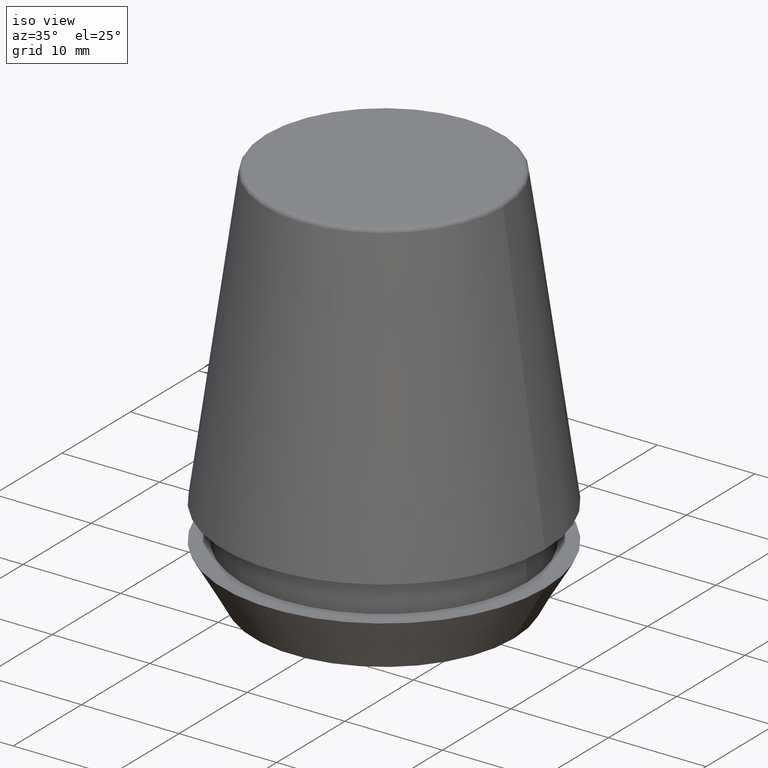
[diagram: clean part render]
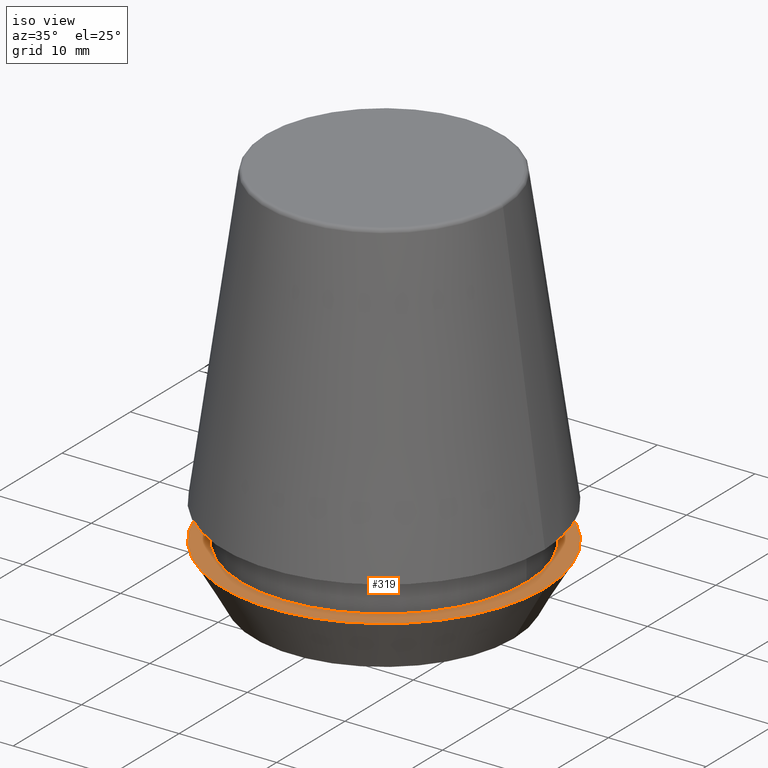
[diagram: same view with one face highlighted and labeled with its STEP entity id]
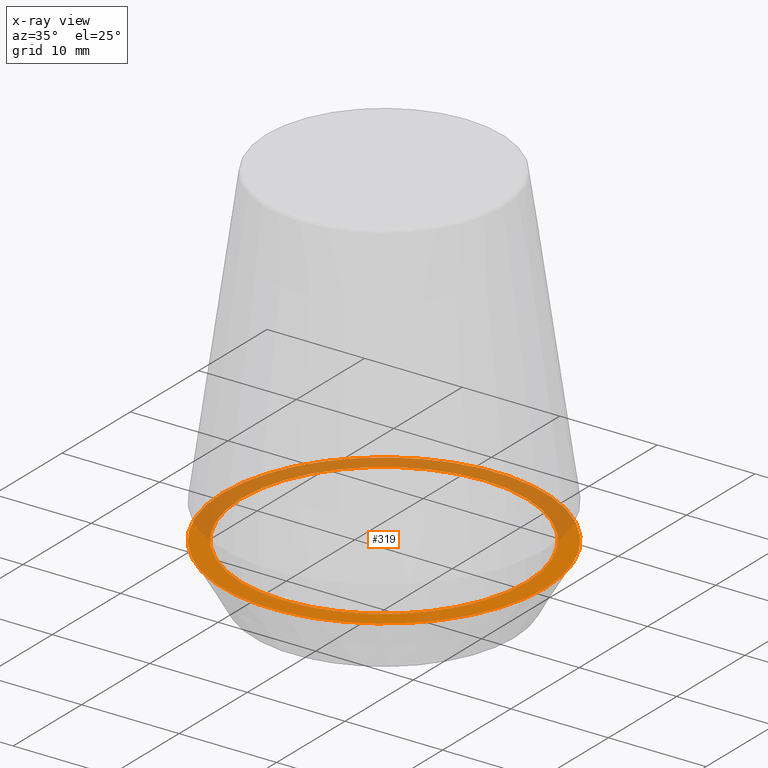
[diagram: x-ray of the same camera — body ghosted, the highlighted face saturated]
A machine part, iso view. The second image highlights one B-rep face of the part: STEP entity #319.
The next image is the same camera in x-ray: the body ghosted, the highlighted face saturated — about 46% of this face is hidden behind the body in this view.
In plain terms, the highlighted planar face has unit normal (0, 0, -1).
Its self-contained STEP definition (entity closure, byte-faithful):
#12 = VERTEX_POINT ( 'NONE', #91 ) ;
#17 = PLANE ( 'NONE',  #96 ) ;
#23 = VERTEX_POINT ( 'NONE', #127 ) ;
#35 = DIRECTION ( 'NONE',  ( -0.0000000000000000000, -0.0000000000000000000, 1.000000000000000000 ) ) ;
#36 = DIRECTION ( 'NONE',  ( -0.0000000000000000000, -0.0000000000000000000, 1.000000000000000000 ) ) ;
#46 = AXIS2_PLACEMENT_3D ( 'NONE', #280, #36, #219 ) ;
#61 = ORIENTED_EDGE ( 'NONE', *, *, #191, .F. ) ;
#71 = AXIS2_PLACEMENT_3D ( 'NONE', #217, #35, #135 ) ;
#91 = CARTESIAN_POINT ( 'NONE',  ( -14.60000000000000000, 1.787984326755135800E-015, 5.500000000000005300 ) ) ;
#96 = AXIS2_PLACEMENT_3D ( 'NONE', #324, #113, #291 ) ;
#104 = CARTESIAN_POINT ( 'NONE',  ( 14.60000000000000000, 0.0000000000000000000, 5.500000000000005300 ) ) ;
#110 = CARTESIAN_POINT ( 'NONE',  ( 0.0000000000000000000, 0.0000000000000000000, 5.500000000000005300 ) ) ;
#113 = DIRECTION ( 'NONE',  ( 0.0000000000000000000, 0.0000000000000000000, -1.000000000000000000 ) ) ;
#127 = CARTESIAN_POINT ( 'NONE',  ( 16.50000000000000000, 0.0000000000000000000, 5.500000000000005300 ) ) ;
#128 = DIRECTION ( 'NONE',  ( -0.0000000000000000000, -0.0000000000000000000, 1.000000000000000000 ) ) ;
#134 = EDGE_LOOP ( 'NONE', ( #224, #182 ) ) ;
#135 = DIRECTION ( 'NONE',  ( 1.000000000000000000, 0.0000000000000000000, 0.0000000000000000000 ) ) ;
#145 = DIRECTION ( 'NONE',  ( -0.0000000000000000000, -0.0000000000000000000, 1.000000000000000000 ) ) ;
#147 = EDGE_CURVE ( 'NONE', #12, #286, #364, .T. ) ;
#151 = AXIS2_PLACEMENT_3D ( 'NONE', #369, #128, #307 ) ;
#170 = DIRECTION ( 'NONE',  ( 1.000000000000000000, 0.0000000000000000000, 0.0000000000000000000 ) ) ;
#171 = CIRCLE ( 'NONE', #71, 16.50000000000000000 ) ;
#178 = EDGE_CURVE ( 'NONE', #23, #316, #171, .T. ) ;
#182 = ORIENTED_EDGE ( 'NONE', *, *, #347, .T. ) ;
#191 = EDGE_CURVE ( 'NONE', #286, #12, #355, .T. ) ;
#199 = FACE_OUTER_BOUND ( 'NONE', #134, .T. ) ;
#217 = CARTESIAN_POINT ( 'NONE',  ( 0.0000000000000000000, 0.0000000000000000000, 5.500000000000005300 ) ) ;
#219 = DIRECTION ( 'NONE',  ( 1.000000000000000000, 0.0000000000000000000, 0.0000000000000000000 ) ) ;
#224 = ORIENTED_EDGE ( 'NONE', *, *, #178, .T. ) ;
#226 = CARTESIAN_POINT ( 'NONE',  ( -16.50000000000000000, 2.020667218593133100E-015, 5.500000000000005300 ) ) ;
#269 = ORIENTED_EDGE ( 'NONE', *, *, #147, .F. ) ;
#277 = FACE_BOUND ( 'NONE', #297, .T. ) ;
#280 = CARTESIAN_POINT ( 'NONE',  ( 0.0000000000000000000, 0.0000000000000000000, 5.500000000000005300 ) ) ;
#286 = VERTEX_POINT ( 'NONE', #104 ) ;
#291 = DIRECTION ( 'NONE',  ( -1.000000000000000000, 0.0000000000000000000, -0.0000000000000000000 ) ) ;
#293 = AXIS2_PLACEMENT_3D ( 'NONE', #110, #145, #170 ) ;
#297 = EDGE_LOOP ( 'NONE', ( #61, #269 ) ) ;
#307 = DIRECTION ( 'NONE',  ( 1.000000000000000000, 0.0000000000000000000, 0.0000000000000000000 ) ) ;
#316 = VERTEX_POINT ( 'NONE', #226 ) ;
#319 = ADVANCED_FACE ( 'NONE', ( #277, #199 ), #17, .F. ) ;
#324 = CARTESIAN_POINT ( 'NONE',  ( 0.0000000000000000000, 16.50000000000000000, 5.500000000000002700 ) ) ;
#347 = EDGE_CURVE ( 'NONE', #316, #23, #366, .T. ) ;
#355 = CIRCLE ( 'NONE', #46, 14.60000000000000000 ) ;
#364 = CIRCLE ( 'NONE', #151, 14.60000000000000000 ) ;
#366 = CIRCLE ( 'NONE', #293, 16.50000000000000000 ) ;
#369 = CARTESIAN_POINT ( 'NONE',  ( 0.0000000000000000000, 0.0000000000000000000, 5.500000000000005300 ) ) ;